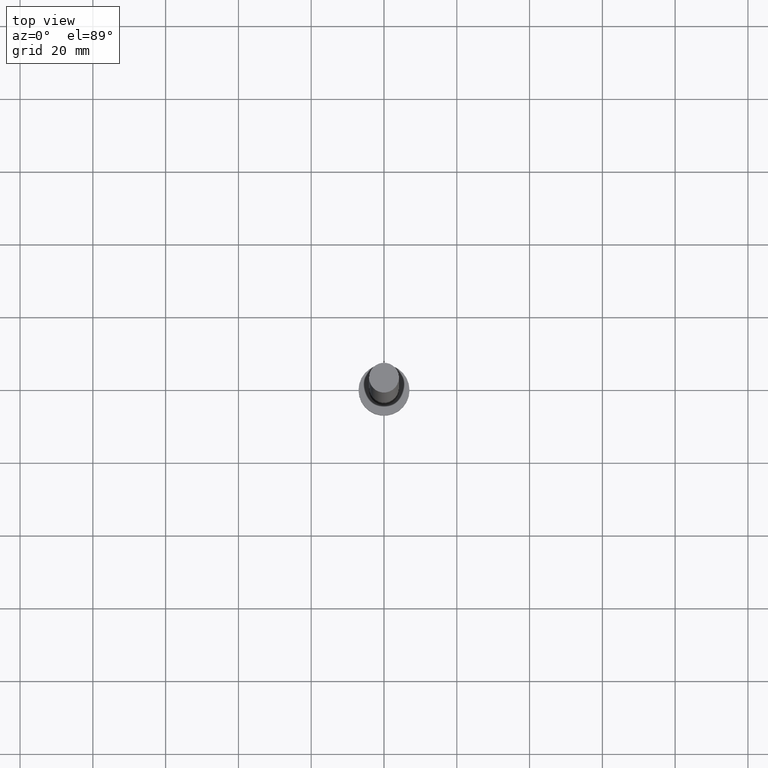
[diagram: clean part render]
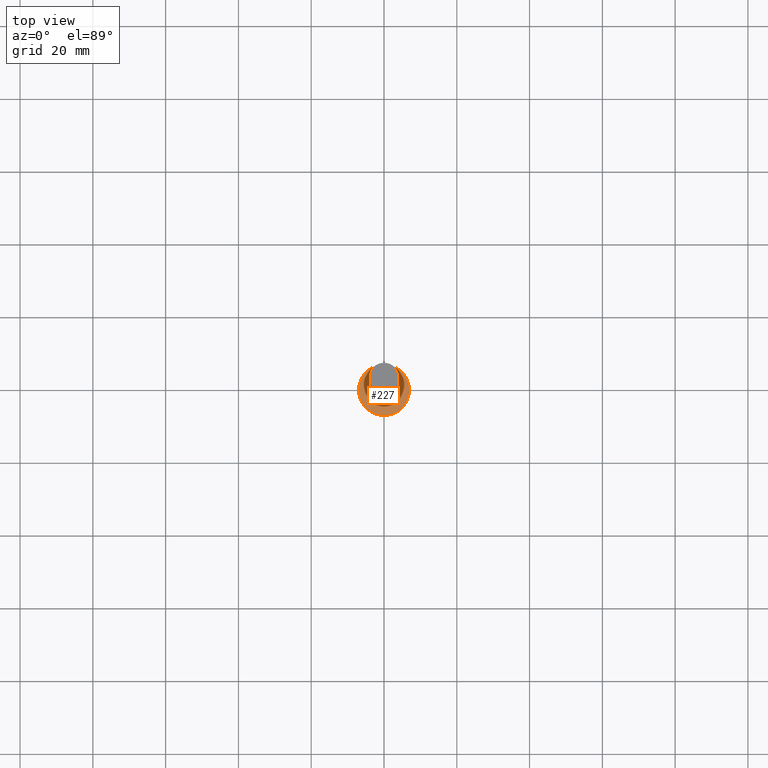
[diagram: same view with one face highlighted and labeled with its STEP entity id]
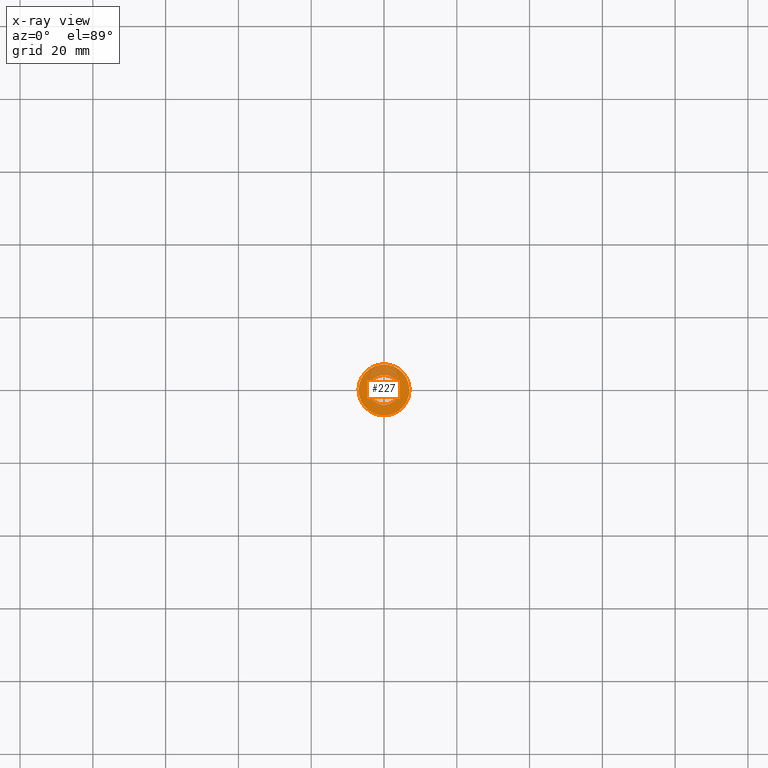
[diagram: x-ray of the same camera — body ghosted, the highlighted face saturated]
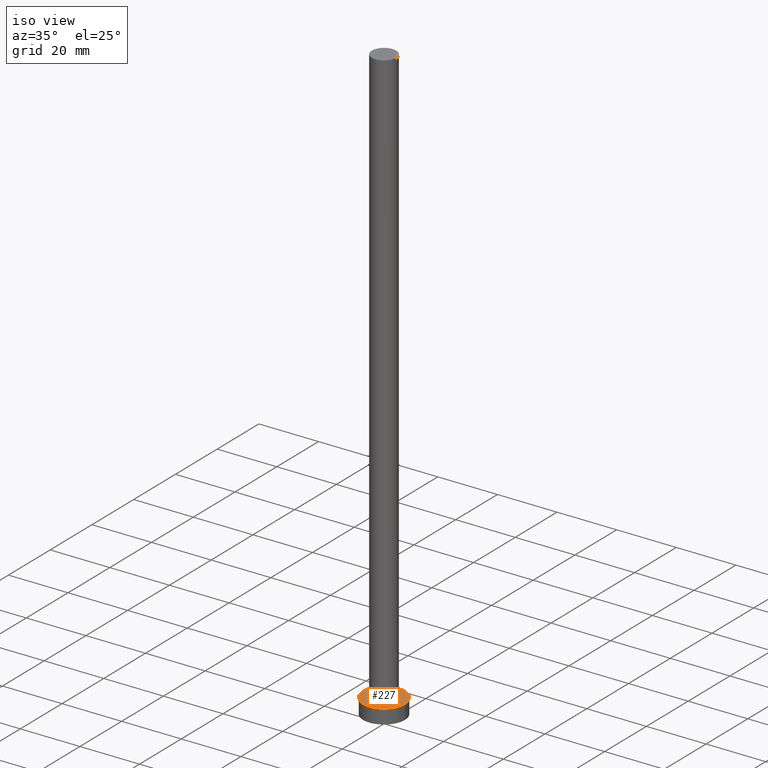
[diagram: same view with one face highlighted and labeled with its STEP entity id]
A machine part, top view. The second image highlights one B-rep face of the part: STEP entity #227.
The next image is the same camera in x-ray: the body ghosted, the highlighted face saturated — about 26% of this face is hidden behind the body in this view.
A second angle (iso view) of the same face is appended — the face is thin or edge-on in the first view.
In plain terms, the highlighted planar face has unit normal (0, 0, 1).
Its self-contained STEP definition (entity closure, byte-faithful):
#21 = EDGE_CURVE ( 'NONE', #135, #28, #133, .T. ) ;
#28 = VERTEX_POINT ( 'NONE', #250 ) ;
#44 = DIRECTION ( 'NONE',  ( 0.000000000000000000, 0.000000000000000000, 1.000000000000000000 ) ) ;
#57 = DIRECTION ( 'NONE',  ( 0.000000000000000000, 0.000000000000000000, 1.000000000000000000 ) ) ;
#58 = CARTESIAN_POINT ( 'NONE',  ( 4.099999999999999645, 5.021051876504147385E-16, 5.000000000000000000 ) ) ;
#66 = CIRCLE ( 'NONE', #90, 4.099999999999999645 ) ;
#85 = DIRECTION ( 'NONE',  ( 1.000000000000000000, 0.000000000000000000, 0.000000000000000000 ) ) ;
#90 = AXIS2_PLACEMENT_3D ( 'NONE', #179, #165, #85 ) ;
#92 = DIRECTION ( 'NONE',  ( 0.000000000000000000, 0.000000000000000000, 1.000000000000000000 ) ) ;
#94 = CIRCLE ( 'NONE', #239, 4.099999999999999645 ) ;
#97 = ORIENTED_EDGE ( 'NONE', *, *, #21, .T. ) ;
#102 = CARTESIAN_POINT ( 'NONE',  ( 0.000000000000000000, 0.000000000000000000, 5.000000000000000000 ) ) ;
#105 = DIRECTION ( 'NONE',  ( 0.000000000000000000, 0.000000000000000000, 1.000000000000000000 ) ) ;
#108 = CIRCLE ( 'NONE', #235, 7.000000000000000000 ) ;
#110 = DIRECTION ( 'NONE',  ( 1.000000000000000000, 0.000000000000000000, -0.000000000000000000 ) ) ;
#111 = CARTESIAN_POINT ( 'NONE',  ( 7.000000000000000000, 8.572527594031473190E-16, 5.000000000000000000 ) ) ;
#114 = DIRECTION ( 'NONE',  ( 1.000000000000000000, 0.000000000000000000, 0.000000000000000000 ) ) ;
#129 = EDGE_CURVE ( 'NONE', #28, #135, #108, .T. ) ;
#133 = CIRCLE ( 'NONE', #232, 7.000000000000000000 ) ;
#135 = VERTEX_POINT ( 'NONE', #111 ) ;
#148 = CARTESIAN_POINT ( 'NONE',  ( 0.000000000000000000, 0.000000000000000000, 5.000000000000000000 ) ) ;
#152 = ORIENTED_EDGE ( 'NONE', *, *, #213, .F. ) ;
#165 = DIRECTION ( 'NONE',  ( 0.000000000000000000, 0.000000000000000000, 1.000000000000000000 ) ) ;
#167 = ORIENTED_EDGE ( 'NONE', *, *, #194, .F. ) ;
#169 = CARTESIAN_POINT ( 'NONE',  ( -4.099999999999999645, 0.000000000000000000, 5.000000000000000000 ) ) ;
#174 = VERTEX_POINT ( 'NONE', #58 ) ;
#179 = CARTESIAN_POINT ( 'NONE',  ( 0.000000000000000000, 0.000000000000000000, 5.000000000000000000 ) ) ;
#184 = DIRECTION ( 'NONE',  ( 1.000000000000000000, 0.000000000000000000, 0.000000000000000000 ) ) ;
#190 = FACE_BOUND ( 'NONE', #253, .T. ) ;
#191 = EDGE_LOOP ( 'NONE', ( #205, #97 ) ) ;
#194 = EDGE_CURVE ( 'NONE', #249, #174, #66, .T. ) ;
#205 = ORIENTED_EDGE ( 'NONE', *, *, #129, .T. ) ;
#212 = AXIS2_PLACEMENT_3D ( 'NONE', #148, #44, #110 ) ;
#213 = EDGE_CURVE ( 'NONE', #174, #249, #94, .T. ) ;
#222 = DIRECTION ( 'NONE',  ( 1.000000000000000000, 0.000000000000000000, 0.000000000000000000 ) ) ;
#223 = CARTESIAN_POINT ( 'NONE',  ( 0.000000000000000000, 0.000000000000000000, 5.000000000000000000 ) ) ;
#227 = ADVANCED_FACE ( 'NONE', ( #190, #251 ), #231, .T. ) ;
#231 = PLANE ( 'NONE',  #212 ) ;
#232 = AXIS2_PLACEMENT_3D ( 'NONE', #223, #92, #114 ) ;
#235 = AXIS2_PLACEMENT_3D ( 'NONE', #102, #105, #184 ) ;
#239 = AXIS2_PLACEMENT_3D ( 'NONE', #247, #57, #222 ) ;
#247 = CARTESIAN_POINT ( 'NONE',  ( 0.000000000000000000, 0.000000000000000000, 5.000000000000000000 ) ) ;
#249 = VERTEX_POINT ( 'NONE', #169 ) ;
#250 = CARTESIAN_POINT ( 'NONE',  ( -7.000000000000000000, 0.000000000000000000, 5.000000000000000000 ) ) ;
#251 = FACE_OUTER_BOUND ( 'NONE', #191, .T. ) ;
#253 = EDGE_LOOP ( 'NONE', ( #167, #152 ) ) ;